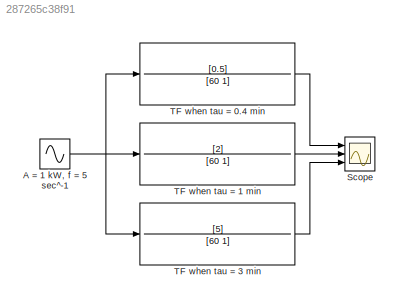
MODEL slx_287265c38f91
KIND model
CONFIG AbsTol = auto
CONFIG EnableMultiTasking = off
CONFIG FixedStep = auto
CONFIG MaxStep = auto
CONFIG MinStep = auto
CONFIG RelTol = 1e-3
CONFIG SampleTimeConstraint = Unconstrained
CONFIG SolverName = VariableStepAuto
CONFIG StartTime = 0.0
CONFIG StopTime = 25
BLOCK [Sin] A = 1 kW, f = 5 sec^-1
  Frequency = 5
  Ports = [0, 1]
  SampleTime = 0
BLOCK [Scope] Scope
  Floating = off
  NumInputPorts = 3
  Ports = [3]
  ScopeSpecificationString = Simulink.scopes.TimeScopeBlockCfg('CurrentConfiguration', extmgr.ConfigurationSet(extmgr.Configuration('Core','General UI',true),extmgr.Configuration('Core','Source UI',true),extmgr.Configuration('Sources','WiredSimulink',true),extmgr.Configuration('Visuals','Time Domain',true,'SerializedDisplays',{struct('MinYLimReal','-2.29651','MaxYLimReal','6.00648','YLabelReal','','MinYLimMag','0.00000','MaxY...<+1460ch>
BLOCK [TransferFcn] TF when tau = 0.4 min
  Denominator = [60 1]
  Numerator = [0.5]
BLOCK [TransferFcn] TF when tau = 1 min
  Denominator = [60 1]
  Numerator = [2]
BLOCK [TransferFcn] TF when tau = 3 min
  Denominator = [60 1]
  Numerator = [5]
NET A = 1 kW, f = 5 sec^-1:1 -> TF when tau = 0.4 min:1, TF when tau = 1 min:1, TF when tau = 3 min:1
LINE TF when tau = 0.4 min:1 -> Scope:1
LINE TF when tau = 1 min:1 -> Scope:2
LINE TF when tau = 3 min:1 -> Scope:3
note: NET lines group one-source signal fan-out (src -> all destinations, sorted); 1:1 wires keep LINE
